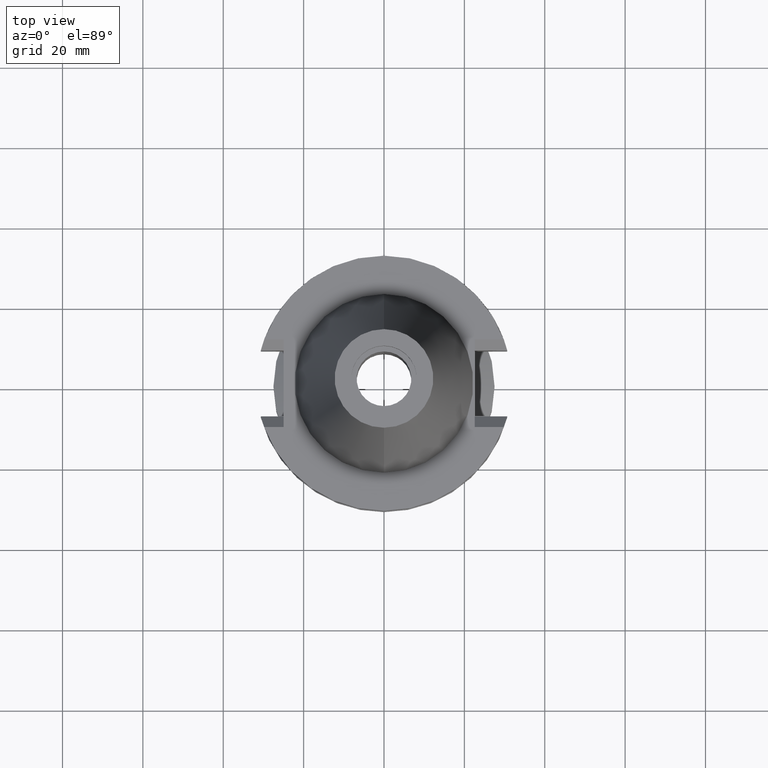
[diagram: clean part render]
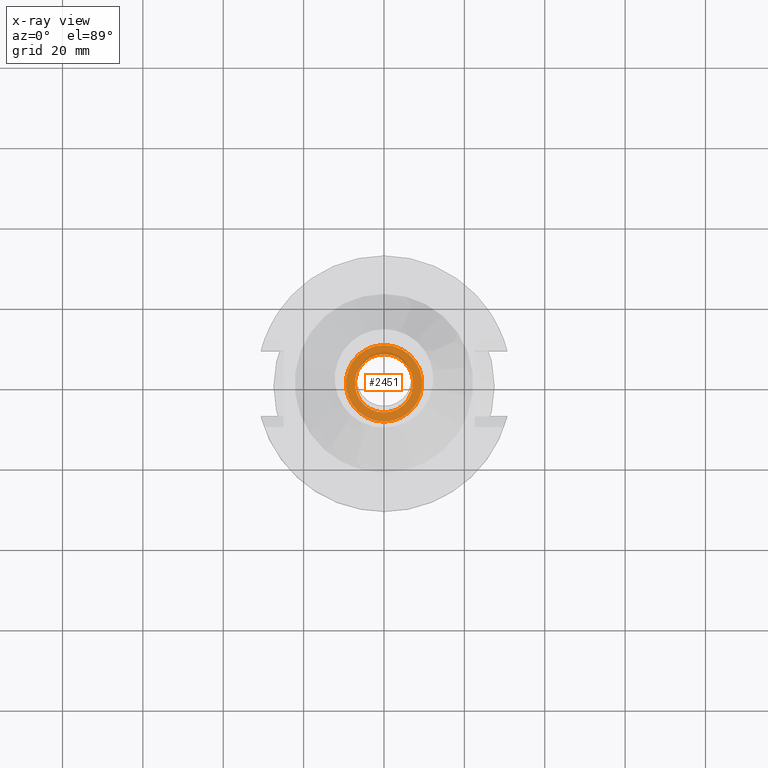
[diagram: x-ray — body ghosted, one internal face saturated and labeled with its STEP entity id]
A machine part, top view, then the same camera in x-ray: the body is ghosted and one INTERNAL B-rep face — a face not visible from any outside direction — is saturated and labeled: STEP entity #2451.
In plain terms, the highlighted planar face has unit normal (0, 0, -1).
Its self-contained STEP definition (entity closure, byte-faithful):
#1150=CARTESIAN_POINT('',(0.E0,2.157919508608E-14,-3.9E0));
#1151=DIRECTION('',(0.E0,0.E0,1.E0));
#1152=DIRECTION('',(0.E0,-1.E0,0.E0));
#1153=AXIS2_PLACEMENT_3D('',#1150,#1151,#1152);
#1158=CARTESIAN_POINT('',(0.E0,2.157919508608E-14,-3.9E0));
#1159=DIRECTION('',(0.E0,0.E0,1.E0));
#1160=DIRECTION('',(0.E0,1.E0,0.E0));
#1161=AXIS2_PLACEMENT_3D('',#1158,#1159,#1160);
#1166=CARTESIAN_POINT('',(0.E0,2.157919508608E-14,-3.9E0));
#1167=DIRECTION('',(0.E0,0.E0,-1.E0));
#1168=DIRECTION('',(0.E0,-1.E0,0.E0));
#1169=AXIS2_PLACEMENT_3D('',#1166,#1167,#1168);
#1174=CARTESIAN_POINT('',(0.E0,2.157919508608E-14,-3.9E0));
#1175=DIRECTION('',(0.E0,0.E0,-1.E0));
#1176=DIRECTION('',(0.E0,1.E0,0.E0));
#1177=AXIS2_PLACEMENT_3D('',#1174,#1175,#1176);
#1346=CARTESIAN_POINT('',(0.E0,7.25E0,-3.9E0));
#1347=VERTEX_POINT('',#1346);
#1348=CARTESIAN_POINT('',(0.E0,-7.25E0,-3.9E0));
#1349=VERTEX_POINT('',#1348);
#1350=CARTESIAN_POINT('',(0.E0,-9.525E0,-3.9E0));
#1351=CARTESIAN_POINT('',(0.E0,9.525E0,-3.9E0));
#1352=VERTEX_POINT('',#1350);
#1353=VERTEX_POINT('',#1351);
#2436=CARTESIAN_POINT('',(0.E0,1.176885573981E-14,-3.9E0));
#2437=DIRECTION('',(0.E0,0.E0,-1.E0));
#2438=DIRECTION('',(0.E0,-1.E0,0.E0));
#2439=AXIS2_PLACEMENT_3D('',#2436,#2437,#2438);
#2440=PLANE('',#2439);
#2441=ORIENTED_EDGE('',*,*,#2429,.T.);
#2442=ORIENTED_EDGE('',*,*,#2418,.T.);
#2443=EDGE_LOOP('',(#2441,#2442));
#2444=FACE_OUTER_BOUND('',#2443,.F.);
#2446=ORIENTED_EDGE('',*,*,#2445,.T.);
#2448=ORIENTED_EDGE('',*,*,#2447,.T.);
#2449=EDGE_LOOP('',(#2446,#2448));
#2450=FACE_BOUND('',#2449,.F.);
#1154=CIRCLE('',#1153,9.525E0);
#1162=CIRCLE('',#1161,9.525E0);
#1170=CIRCLE('',#1169,7.25E0);
#1178=CIRCLE('',#1177,7.25E0);
#2418=EDGE_CURVE('',#1353,#1352,#1162,.T.);
#2429=EDGE_CURVE('',#1352,#1353,#1154,.T.);
#2445=EDGE_CURVE('',#1349,#1347,#1170,.T.);
#2447=EDGE_CURVE('',#1347,#1349,#1178,.T.);
#2451=ADVANCED_FACE('',(#2444,#2450),#2440,.T.);